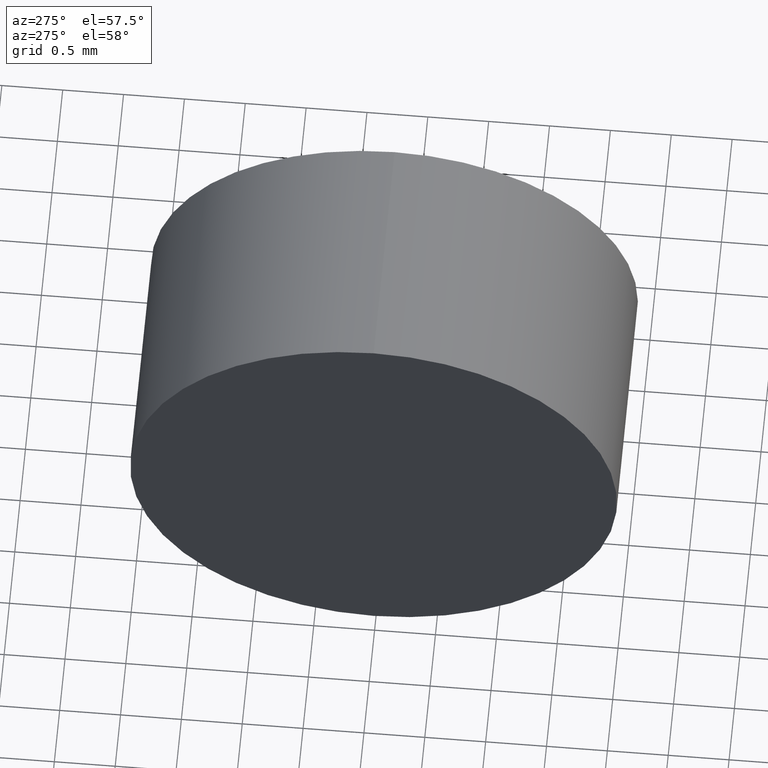
[diagram: clean part render]
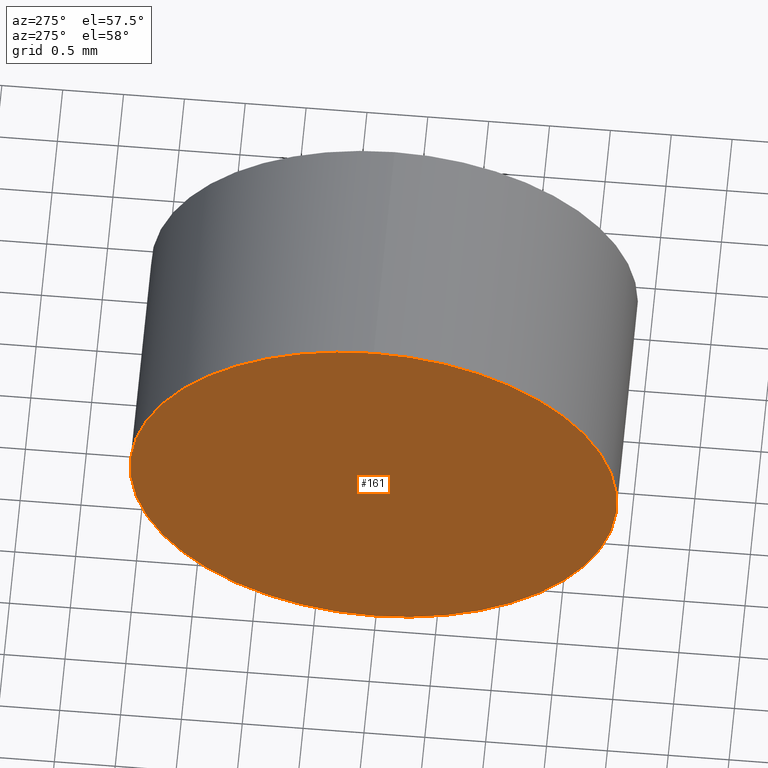
[diagram: same view with one face highlighted and labeled with its STEP entity id]
A machine part, auxiliary view. The second image highlights one B-rep face of the part: STEP entity #161.
In plain terms, the highlighted planar face has unit normal (1, 0, 0).
Its self-contained STEP definition (entity closure, byte-faithful):
#8 = DIRECTION ( 'NONE',  ( 0.0000000000000000000, 0.0000000000000000000, 1.000000000000000000 ) ) ;
#15 = AXIS2_PLACEMENT_3D ( 'NONE', #141, #64, #139 ) ;
#19 = CARTESIAN_POINT ( 'NONE',  ( 11.08059508478296000, 6.515563045701520100, -2.000000000000000900 ) ) ;
#23 = FACE_OUTER_BOUND ( 'NONE', #79, .T. ) ;
#37 = ORIENTED_EDGE ( 'NONE', *, *, #182, .T. ) ;
#42 = VERTEX_POINT ( 'NONE', #93 ) ;
#43 = PLANE ( 'NONE',  #77 ) ;
#51 = ORIENTED_EDGE ( 'NONE', *, *, #173, .T. ) ;
#63 = DIRECTION ( 'NONE',  ( 0.0000000000000000000, 0.0000000000000000000, -1.000000000000000000 ) ) ;
#64 = DIRECTION ( 'NONE',  ( -1.000000000000000000, -0.0000000000000000000, -0.0000000000000000000 ) ) ;
#73 = DIRECTION ( 'NONE',  ( -1.000000000000000000, -0.0000000000000000000, -0.0000000000000000000 ) ) ;
#77 = AXIS2_PLACEMENT_3D ( 'NONE', #98, #181, #63 ) ;
#79 = EDGE_LOOP ( 'NONE', ( #37, #51 ) ) ;
#81 = CIRCLE ( 'NONE', #82, 2.000000000000000900 ) ;
#82 = AXIS2_PLACEMENT_3D ( 'NONE', #95, #73, #8 ) ;
#93 = CARTESIAN_POINT ( 'NONE',  ( 11.08059508478296000, 6.515563045701520100, 2.000000000000000900 ) ) ;
#95 = CARTESIAN_POINT ( 'NONE',  ( 11.08059508478296000, 6.515563045701520100, 0.0000000000000000000 ) ) ;
#98 = CARTESIAN_POINT ( 'NONE',  ( 11.08059508478296000, 6.515563045701520100, 0.0000000000000000000 ) ) ;
#123 = CIRCLE ( 'NONE', #15, 2.000000000000000900 ) ;
#139 = DIRECTION ( 'NONE',  ( 0.0000000000000000000, 0.0000000000000000000, 1.000000000000000000 ) ) ;
#141 = CARTESIAN_POINT ( 'NONE',  ( 11.08059508478296000, 6.515563045701520100, 0.0000000000000000000 ) ) ;
#161 = ADVANCED_FACE ( 'NONE', ( #23 ), #43, .F. ) ;
#173 = EDGE_CURVE ( 'NONE', #175, #42, #123, .T. ) ;
#175 = VERTEX_POINT ( 'NONE', #19 ) ;
#181 = DIRECTION ( 'NONE',  ( 1.000000000000000000, 0.0000000000000000000, 0.0000000000000000000 ) ) ;
#182 = EDGE_CURVE ( 'NONE', #42, #175, #81, .T. ) ;